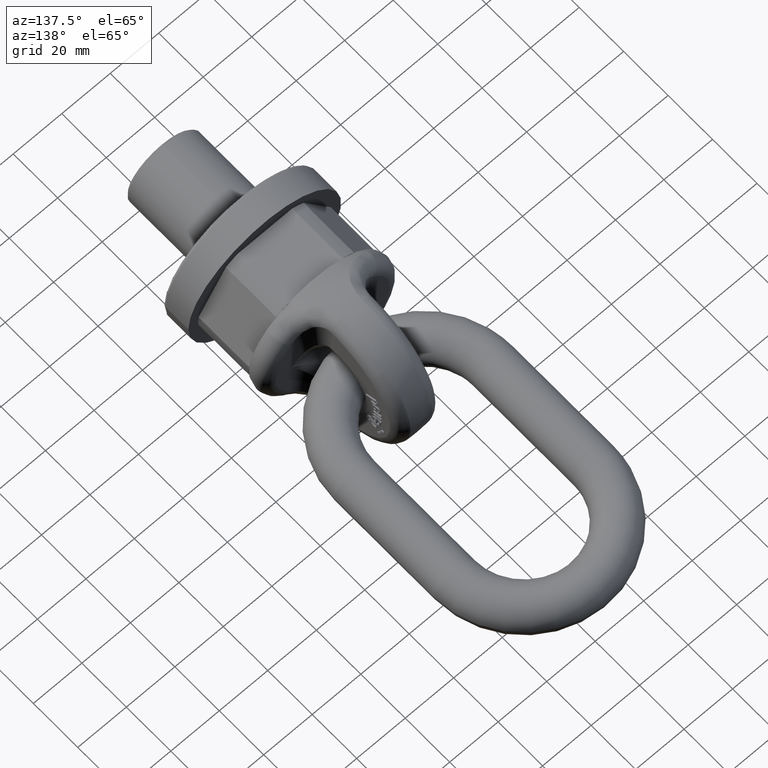
[diagram: clean part render]
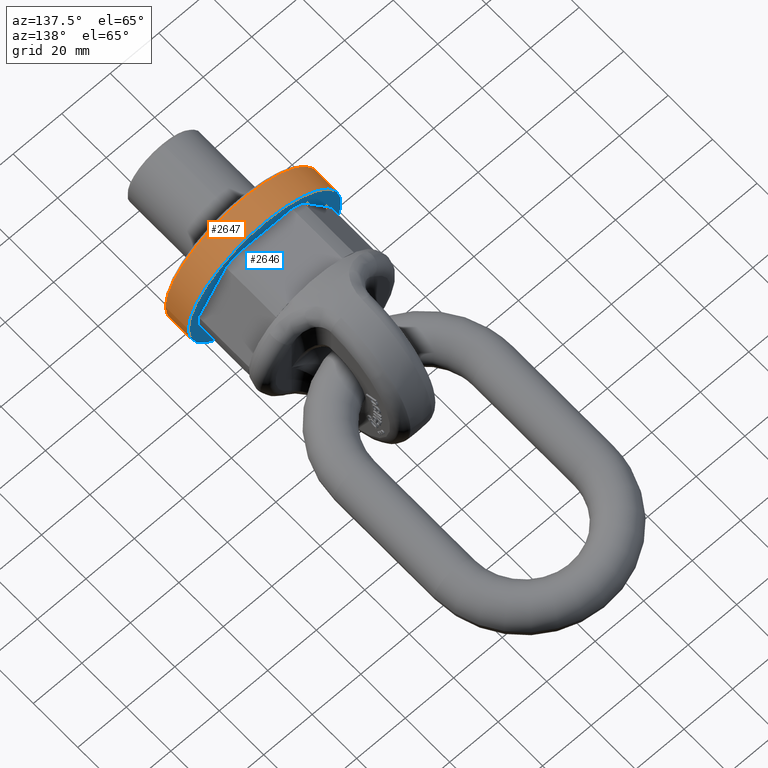
[diagram: same view with the hole feature highlighted: cylindrical wall and planar end face, labeled with their STEP entity ids]
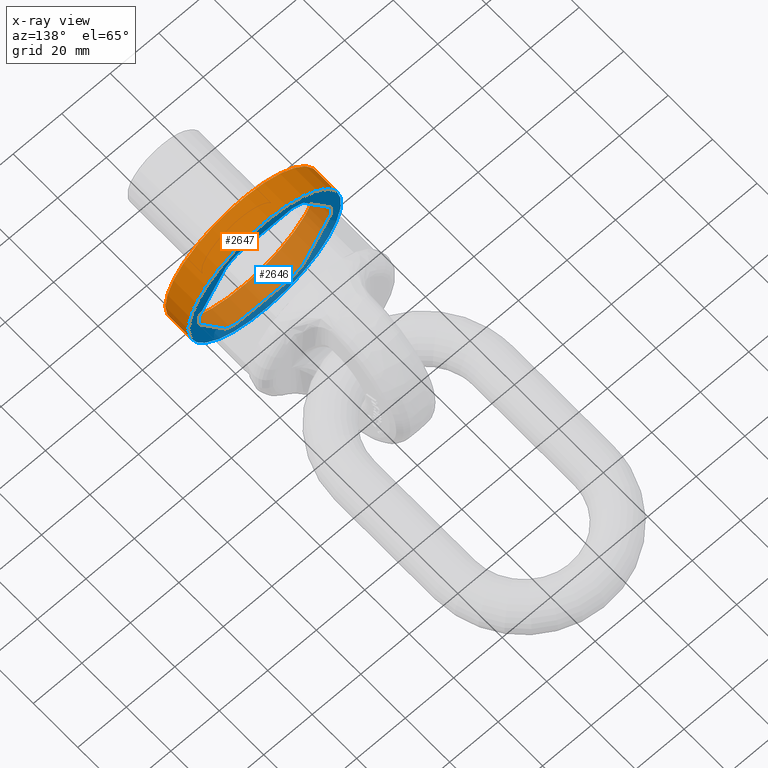
[diagram: x-ray of the same camera — body ghosted, the hole faces saturated]
A machine part, auxiliary view. The highlighted faces form one hole feature of diameter 63 mm: the cylindrical wall (entity #2647, orange) and its adjacent planar end face (entity #2646, blue) — they share a circular edge in the B-rep.
The next image is the same camera in x-ray (body ghosted, the hole faces saturated) — the bore reads through the body.
Wall:
#2020=CYLINDRICAL_SURFACE('',#5616,31.5);
#2647=ADVANCED_FACE('',(#2997,#2998),#2020,.T.);
#2997=FACE_BOUND('',#3069,.T.);
#2998=FACE_BOUND('',#3070,.T.);
#3069=EDGE_LOOP('',(#3366));
#3070=EDGE_LOOP('',(#3367));
#3366=ORIENTED_EDGE('',*,*,#4956,.T.);
#3367=ORIENTED_EDGE('',*,*,#4943,.T.);
#4545=VERTEX_POINT('',#6576);
#4558=VERTEX_POINT('',#6603);
#4943=EDGE_CURVE('',#4545,#4545,#5539,.T.);
#4956=EDGE_CURVE('',#4558,#4558,#5546,.T.);
#5539=CIRCLE('',#5607,31.5);
#5546=CIRCLE('',#5615,31.5);
#5607=AXIS2_PLACEMENT_3D('',#6575,#5817,#5818);
#5615=AXIS2_PLACEMENT_3D('',#6602,#5839,#5840);
#5616=AXIS2_PLACEMENT_3D('',#6604,#5841,#5842);
#5817=DIRECTION('',(4.23223526175924E-17,-1.,0.));
#5818=DIRECTION('',(1.,5.50705865389463E-17,0.));
#5839=DIRECTION('',(-4.23223526175924E-17,1.,0.));
#5840=DIRECTION('',(1.,4.13029399042097E-17,0.));
#5841=DIRECTION('',(4.23223526175924E-17,-1.,0.));
#5842=DIRECTION('',(1.,5.50705865389463E-17,0.));
#6575=CARTESIAN_POINT('',(-4.79653329666047E-16,11.3333333333333,0.));
#6576=CARTESIAN_POINT('',(31.5,11.3333333333333,0.));
#6602=CARTESIAN_POINT('',(-4.23223526175924E-17,0.999999999999999,0.));
#6603=CARTESIAN_POINT('',(31.5,1.,0.));
#6604=CARTESIAN_POINT('',(-4.79653329666047E-16,11.3333333333333,0.));
End face:
#2041=LINE('',#6577,#2297);
#2042=LINE('',#6582,#2298);
#2043=LINE('',#6586,#2299);
#2044=LINE('',#6590,#2300);
#2045=LINE('',#6594,#2301);
#2046=LINE('',#6598,#2302);
#2297=VECTOR('',#5819,1.);
#2298=VECTOR('',#5822,1.);
#2299=VECTOR('',#5825,1.);
#2300=VECTOR('',#5828,1.);
#2301=VECTOR('',#5831,1.);
#2302=VECTOR('',#5834,1.);
#2646=ADVANCED_FACE('',(#2995,#2996),#2889,.T.);
#2889=PLANE('',#5614);
#2995=FACE_BOUND('',#3067,.T.);
#2996=FACE_BOUND('',#3068,.T.);
#3067=EDGE_LOOP('',(#3353));
#3068=EDGE_LOOP('',(#3354,#3355,#3356,#3357,#3358,#3359,#3360,#3361,#3362,
#3363,#3364,#3365));
#3353=ORIENTED_EDGE('',*,*,#4943,.F.);
#3354=ORIENTED_EDGE('',*,*,#4944,.F.);
#3355=ORIENTED_EDGE('',*,*,#4945,.T.);
#3356=ORIENTED_EDGE('',*,*,#4946,.F.);
#3357=ORIENTED_EDGE('',*,*,#4947,.T.);
#3358=ORIENTED_EDGE('',*,*,#4948,.F.);
#3359=ORIENTED_EDGE('',*,*,#4949,.T.);
#3360=ORIENTED_EDGE('',*,*,#4950,.F.);
#3361=ORIENTED_EDGE('',*,*,#4951,.T.);
#3362=ORIENTED_EDGE('',*,*,#4952,.F.);
#3363=ORIENTED_EDGE('',*,*,#4953,.T.);
#3364=ORIENTED_EDGE('',*,*,#4954,.F.);
#3365=ORIENTED_EDGE('',*,*,#4955,.T.);
#4545=VERTEX_POINT('',#6576);
#4546=VERTEX_POINT('',#6578);
#4547=VERTEX_POINT('',#6579);
#4548=VERTEX_POINT('',#6581);
#4549=VERTEX_POINT('',#6583);
#4550=VERTEX_POINT('',#6585);
#4551=VERTEX_POINT('',#6587);
#4552=VERTEX_POINT('',#6589);
#4553=VERTEX_POINT('',#6591);
#4554=VERTEX_POINT('',#6593);
#4555=VERTEX_POINT('',#6595);
#4556=VERTEX_POINT('',#6597);
#4557=VERTEX_POINT('',#6599);
#4943=EDGE_CURVE('',#4545,#4545,#5539,.T.);
#4944=EDGE_CURVE('',#4546,#4547,#2041,.T.);
#4945=EDGE_CURVE('',#4546,#4548,#5540,.T.);
#4946=EDGE_CURVE('',#4549,#4548,#2042,.T.);
#4947=EDGE_CURVE('',#4549,#4550,#5541,.T.);
#4948=EDGE_CURVE('',#4551,#4550,#2043,.T.);
#4949=EDGE_CURVE('',#4551,#4552,#5542,.T.);
#4950=EDGE_CURVE('',#4553,#4552,#2044,.T.);
#4951=EDGE_CURVE('',#4553,#4554,#5543,.T.);
#4952=EDGE_CURVE('',#4555,#4554,#2045,.T.);
#4953=EDGE_CURVE('',#4555,#4556,#5544,.T.);
#4954=EDGE_CURVE('',#4557,#4556,#2046,.T.);
#4955=EDGE_CURVE('',#4557,#4547,#5545,.T.);
#5539=CIRCLE('',#5607,31.5);
#5540=CIRCLE('',#5608,27.4241377865072);
#5541=CIRCLE('',#5609,27.4241377865072);
#5542=CIRCLE('',#5610,27.4241377865072);
#5543=CIRCLE('',#5611,27.4241377865072);
#5544=CIRCLE('',#5612,27.4241377865072);
#5545=CIRCLE('',#5613,27.4241377865072);
#5607=AXIS2_PLACEMENT_3D('',#6575,#5817,#5818);
#5608=AXIS2_PLACEMENT_3D('',#6580,#5820,#5821);
#5609=AXIS2_PLACEMENT_3D('',#6584,#5823,#5824);
#5610=AXIS2_PLACEMENT_3D('',#6588,#5826,#5827);
#5611=AXIS2_PLACEMENT_3D('',#6592,#5829,#5830);
#5612=AXIS2_PLACEMENT_3D('',#6596,#5832,#5833);
#5613=AXIS2_PLACEMENT_3D('',#6600,#5835,#5836);
#5614=AXIS2_PLACEMENT_3D('',#6601,#5837,#5838);
#5817=DIRECTION('',(4.23223526175924E-17,-1.,0.));
#5818=DIRECTION('',(1.,5.50705865389463E-17,0.));
#5819=DIRECTION('',(0.499999999999999,2.11611763087961E-17,-0.866025403784439));
#5820=DIRECTION('',(4.23223526175924E-17,-1.,0.));
#5821=DIRECTION('',(-1.,-6.32553515257751E-17,0.));
#5822=DIRECTION('',(1.,4.23223526175924E-17,0.));
#5823=DIRECTION('',(4.23223526175924E-17,-1.,0.));
#5824=DIRECTION('',(-1.,-6.32553515257751E-17,0.));
#5825=DIRECTION('',(0.499999999999999,2.11611763087961E-17,0.866025403784439));
#5826=DIRECTION('',(4.23223526175924E-17,-1.,0.));
#5827=DIRECTION('',(-1.,-6.32553515257751E-17,0.));
#5828=DIRECTION('',(-0.499999999999999,-2.11611763087961E-17,0.866025403784439));
#5829=DIRECTION('',(4.23223526175924E-17,-1.,0.));
#5830=DIRECTION('',(-1.,-6.32553515257751E-17,0.));
#5831=DIRECTION('',(-1.,-4.23223526175924E-17,0.));
#5832=DIRECTION('',(4.23223526175924E-17,-1.,0.));
#5833=DIRECTION('',(-1.,-6.32553515257751E-17,0.));
#5834=DIRECTION('',(-0.499999999999999,-2.11611763087961E-17,-0.866025403784439));
#5835=DIRECTION('',(4.23223526175924E-17,-1.,0.));
#5836=DIRECTION('',(-1.,-6.32553515257751E-17,0.));
#5837=DIRECTION('',(-4.23223526175924E-17,1.,0.));
#5838=DIRECTION('',(-1.,-4.16333634234434E-17,0.));
#6575=CARTESIAN_POINT('',(-4.79653329666047E-16,11.3333333333333,0.));
#6576=CARTESIAN_POINT('',(31.5,11.3333333333333,0.));
#6577=CARTESIAN_POINT('',(29.5256350946109,11.3333333333333,-1.13990010960493));
#6578=CARTESIAN_POINT('',(16.0140729035823,11.3333333333333,22.2628120948833));
#6579=CARTESIAN_POINT('',(27.2871972856396,11.3333333333333,2.73718790511658));
#6580=CARTESIAN_POINT('',(-2.77586607806733E-16,11.3333333333333,0.));
#6581=CARTESIAN_POINT('',(11.2731243820572,11.3333333333333,25.));
#6582=CARTESIAN_POINT('',(31.5,11.3333333333333,25.));
#6583=CARTESIAN_POINT('',(-11.2731243820572,11.3333333333333,25.));
#6584=CARTESIAN_POINT('',(-2.77586607806733E-16,11.3333333333333,0.));
#6585=CARTESIAN_POINT('',(-16.0140729035823,11.3333333333333,22.2628120948833));
#6586=CARTESIAN_POINT('',(-13.775635094611,11.3333333333333,26.1399001096048));
#6587=CARTESIAN_POINT('',(-27.2871972856396,11.3333333333333,2.73718790511658));
#6588=CARTESIAN_POINT('',(-2.77586607806733E-16,11.3333333333333,0.));
#6589=CARTESIAN_POINT('',(-27.2871972856396,11.3333333333333,-2.73718790511658));
#6590=CARTESIAN_POINT('',(-13.775635094611,11.3333333333333,-26.1399001096048));
#6591=CARTESIAN_POINT('',(-16.0140729035823,11.3333333333333,-22.2628120948833));
#6592=CARTESIAN_POINT('',(-2.77586607806733E-16,11.3333333333333,0.));
#6593=CARTESIAN_POINT('',(-11.2731243820572,11.3333333333333,-25.));
#6594=CARTESIAN_POINT('',(31.5,11.3333333333333,-25.));
#6595=CARTESIAN_POINT('',(11.2731243820572,11.3333333333333,-25.));
#6596=CARTESIAN_POINT('',(-2.77586607806733E-16,11.3333333333333,0.));
#6597=CARTESIAN_POINT('',(16.0140729035823,11.3333333333333,-22.2628120948833));
#6598=CARTESIAN_POINT('',(29.5256350946109,11.3333333333333,1.13990010960493));
#6599=CARTESIAN_POINT('',(27.2871972856396,11.3333333333333,-2.73718790511658));
#6600=CARTESIAN_POINT('',(-2.77586607806733E-16,11.3333333333333,0.));
#6601=CARTESIAN_POINT('',(31.5,11.3333333333333,0.));